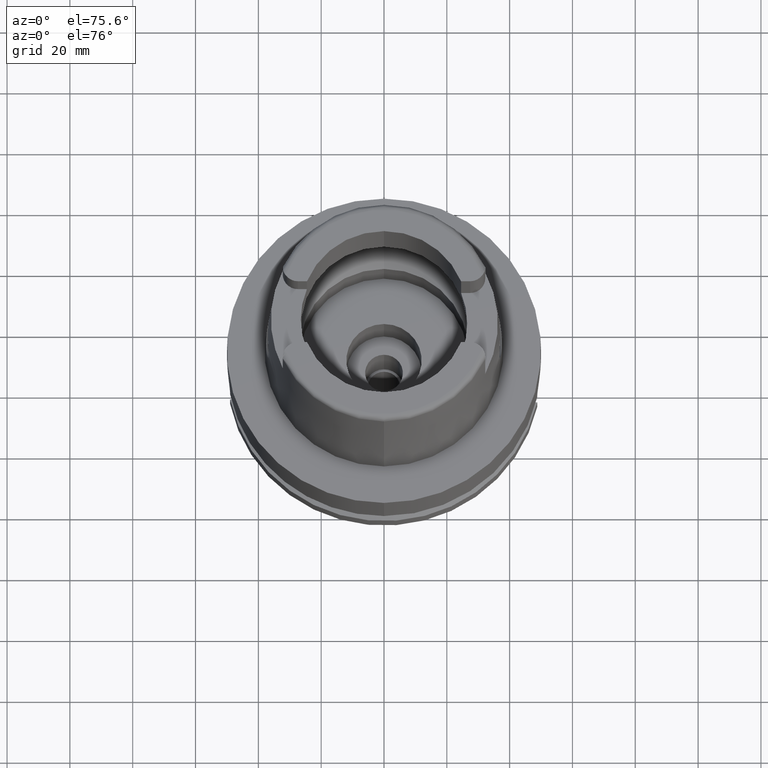
[diagram: clean part render]
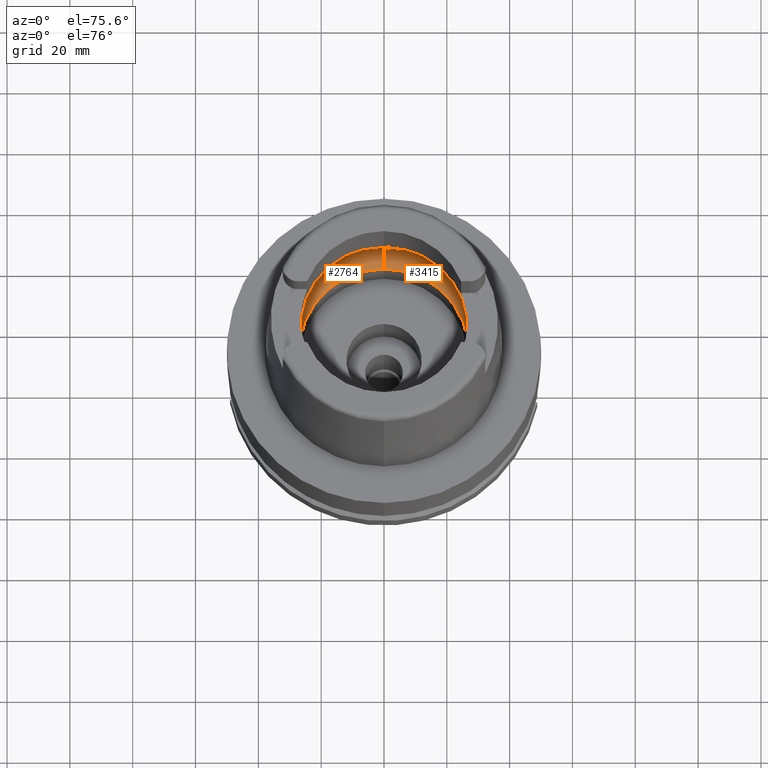
[diagram: same view with one multi-face feature highlighted, each face labeled with its STEP entity id]
A machine part, auxiliary view. The highlighted faces form ONE feature: a constant-radius fillet chain: 2 tangent blend faces with common blend radius 12 mm. The faces share edges in the B-rep.
Their STEP definitions:
[1] entity #3415 (Torus):
#8 = CIRCLE ( 'NONE', #812, 31.50000000000000000 ) ;
#39 = DIRECTION ( 'NONE',  ( 0.0000000000000000000, -0.6166666666667049990, -0.7872243785746061429 ) ) ;
#42 = AXIS2_PLACEMENT_3D ( 'NONE', #4394, #1813, #487 ) ;
#134 = CIRCLE ( 'NONE', #3307, 31.49999999999998934 ) ;
#153 = CIRCLE ( 'NONE', #3763, 26.89999999999999858 ) ;
#240 = ORIENTED_EDGE ( 'NONE', *, *, #1332, .F. ) ;
#327 = CARTESIAN_POINT ( 'NONE',  ( 31.40918884336000616, 2.390158196043999705, 9.496624327025999790 ) ) ;
#431 = CARTESIAN_POINT ( 'NONE',  ( 0.0000000000000000000, 0.0000000000000000000, 9.496624327025999790 ) ) ;
#448 = DIRECTION ( 'NONE',  ( 0.0000000000000000000, -1.000000000000000000, 0.0000000000000000000 ) ) ;
#474 = DIRECTION ( 'NONE',  ( 0.0000000000000000000, 0.0000000000000000000, 1.000000000000000000 ) ) ;
#487 = DIRECTION ( 'NONE',  ( 0.0000000000000000000, 1.000000000000000000, 0.0000000000000000000 ) ) ;
#523 = CARTESIAN_POINT ( 'NONE',  ( 31.40918884336000616, -2.390158196043999705, 9.496624327025999790 ) ) ;
#694 = CARTESIAN_POINT ( 'NONE',  ( 0.0000000000000000000, 19.50000000000000000, 9.496624327025999790 ) ) ;
#800 = CARTESIAN_POINT ( 'NONE',  ( 31.45843215351000310, 1.626125992769999806, 9.205189397203000112 ) ) ;
#812 = AXIS2_PLACEMENT_3D ( 'NONE', #431, #2612, #5432 ) ;
#1130 = VERTEX_POINT ( 'NONE', #1735 ) ;
#1237 = ORIENTED_EDGE ( 'NONE', *, *, #2374, .F. ) ;
#1319 = CARTESIAN_POINT ( 'NONE',  ( 0.0000000000000000000, 0.0000000000000000000, 0.04993178413033000362 ) ) ;
#1331 = CARTESIAN_POINT ( 'NONE',  ( 0.0000000000000000000, 31.50000000000000000, 9.496624327025999790 ) ) ;
#1332 = EDGE_CURVE ( 'NONE', #3089, #1660, #134, .T. ) ;
#1349 = ORIENTED_EDGE ( 'NONE', *, *, #2657, .F. ) ;
#1395 = VERTEX_POINT ( 'NONE', #3358 ) ;
#1660 = VERTEX_POINT ( 'NONE', #2300 ) ;
#1729 = B_SPLINE_CURVE_WITH_KNOTS ( 'NONE', 3,
 ( #327, #5590, #800, #2058, #2161, #2104 ),
 .UNSPECIFIED., .F., .F.,
 ( 4, 1, 1, 4 ),
 ( 0.0000000000000000000, 0.3333333333333000081, 0.6666666666667000474, 1.000000000000000000 ),
 .UNSPECIFIED. ) ;
#1735 = CARTESIAN_POINT ( 'NONE',  ( 31.40918884336000616, 2.390158196043999705, 9.496624327025999790 ) ) ;
#1750 = CIRCLE ( 'NONE', #2481, 11.99999999999999822 ) ;
#1793 = CARTESIAN_POINT ( 'NONE',  ( 31.45843229728999901, -1.626122314408000147, 9.205188491873000700 ) ) ;
#1801 = B_SPLINE_CURVE_WITH_KNOTS ( 'NONE', 3,
 ( #4001, #2186, #3073, #1793, #2680, #523 ),
 .UNSPECIFIED., .F., .F.,
 ( 4, 1, 1, 4 ),
 ( 0.0000000000000000000, 0.3333333333333000081, 0.6666666666667000474, 1.000000000000000000 ),
 .UNSPECIFIED. ) ;
#1813 = DIRECTION ( 'NONE',  ( 0.0000000000000000000, 0.0000000000000000000, 1.000000000000000000 ) ) ;
#1989 = ORIENTED_EDGE ( 'NONE', *, *, #2773, .F. ) ;
#2058 = CARTESIAN_POINT ( 'NONE',  ( 31.48416663622000300, 0.8216256622719000369, 9.037606172252001357 ) ) ;
#2104 = CARTESIAN_POINT ( 'NONE',  ( 31.48971910754000447, 0.0000000000000000000, 9.000000000000000000 ) ) ;
#2161 = CARTESIAN_POINT ( 'NONE',  ( 31.48971910754000447, 0.2740808193429000172, 9.000000000000000000 ) ) ;
#2181 = VERTEX_POINT ( 'NONE', #4269 ) ;
#2186 = CARTESIAN_POINT ( 'NONE',  ( 31.48971910754000447, -0.2740816369240999806, 9.000000000000000000 ) ) ;
#2209 = ORIENTED_EDGE ( 'NONE', *, *, #3029, .F. ) ;
#2300 = CARTESIAN_POINT ( 'NONE',  ( 0.0000000000000000000, -31.50000000000000000, 9.496624327025999790 ) ) ;
#2374 = EDGE_CURVE ( 'NONE', #1395, #5329, #153, .T. ) ;
#2426 = DIRECTION ( 'NONE',  ( 1.000000000000000000, 0.0000000000000000000, 0.0000000000000000000 ) ) ;
#2481 = AXIS2_PLACEMENT_3D ( 'NONE', #3913, #3067, #39 ) ;
#2612 = DIRECTION ( 'NONE',  ( 0.0000000000000000000, 0.0000000000000000000, -1.000000000000000000 ) ) ;
#2657 = EDGE_CURVE ( 'NONE', #1130, #2181, #1729, .T. ) ;
#2680 = CARTESIAN_POINT ( 'NONE',  ( 31.42817542026000410, -2.140654635826999996, 9.388263020288000860 ) ) ;
#2773 = EDGE_CURVE ( 'NONE', #2181, #3089, #1801, .T. ) ;
#2831 = DIRECTION ( 'NONE',  ( 0.9971171061384295209, -0.07587803796965221503, 0.0000000000000000000 ) ) ;
#3017 = AXIS2_PLACEMENT_3D ( 'NONE', #694, #2426, #5397 ) ;
#3029 = EDGE_CURVE ( 'NONE', #5329, #4641, #3743, .T. ) ;
#3067 = DIRECTION ( 'NONE',  ( -1.000000000000000000, 0.0000000000000000000, 0.0000000000000000000 ) ) ;
#3073 = CARTESIAN_POINT ( 'NONE',  ( 31.48416657243999950, -0.8216274657312000462, 9.037606582851999804 ) ) ;
#3089 = VERTEX_POINT ( 'NONE', #4728 ) ;
#3307 = AXIS2_PLACEMENT_3D ( 'NONE', #4605, #5453, #2831 ) ;
#3350 = EDGE_CURVE ( 'NONE', #1395, #1660, #1750, .T. ) ;
#3358 = CARTESIAN_POINT ( 'NONE',  ( 0.0000000000000000000, -26.89999999999999858, 0.04993178413033000362 ) ) ;
#3390 = ORIENTED_EDGE ( 'NONE', *, *, #3350, .T. ) ;
#3415 = ADVANCED_FACE ( 'NONE', ( #4362 ), #5373, .F. ) ;
#3529 = EDGE_LOOP ( 'NONE', ( #1349, #4062, #2209, #1237, #3390, #240, #1989 ) ) ;
#3743 = CIRCLE ( 'NONE', #3017, 11.99999999999999822 ) ;
#3763 = AXIS2_PLACEMENT_3D ( 'NONE', #1319, #474, #448 ) ;
#3913 = CARTESIAN_POINT ( 'NONE',  ( 0.0000000000000000000, -19.50000000000000000, 9.496624327025999790 ) ) ;
#4001 = CARTESIAN_POINT ( 'NONE',  ( 31.48971910754000447, 0.0000000000000000000, 9.000000000000000000 ) ) ;
#4062 = ORIENTED_EDGE ( 'NONE', *, *, #4370, .F. ) ;
#4269 = CARTESIAN_POINT ( 'NONE',  ( 31.48971910754000447, 0.0000000000000000000, 9.000000000000000000 ) ) ;
#4362 = FACE_OUTER_BOUND ( 'NONE', #3529, .T. ) ;
#4370 = EDGE_CURVE ( 'NONE', #4641, #1130, #8, .T. ) ;
#4394 = CARTESIAN_POINT ( 'NONE',  ( 0.0000000000000000000, 0.0000000000000000000, 9.496624327025999790 ) ) ;
#4433 = CARTESIAN_POINT ( 'NONE',  ( 0.0000000000000000000, 26.89999999999999858, 0.04993178413034000257 ) ) ;
#4605 = CARTESIAN_POINT ( 'NONE',  ( 0.0000000000000000000, 0.0000000000000000000, 9.496624327025999790 ) ) ;
#4641 = VERTEX_POINT ( 'NONE', #1331 ) ;
#4728 = CARTESIAN_POINT ( 'NONE',  ( 31.40918884336000616, -2.390158196043999705, 9.496624327025999790 ) ) ;
#5329 = VERTEX_POINT ( 'NONE', #4433 ) ;
#5373 = TOROIDAL_SURFACE ( 'NONE', #42, 19.50000000000000000, 12.00000000000000000 ) ;
#5397 = DIRECTION ( 'NONE',  ( 0.0000000000000000000, 0.6166666666667049990, -0.7872243785746061429 ) ) ;
#5432 = DIRECTION ( 'NONE',  ( 0.0000000000000000000, 1.000000000000000000, 0.0000000000000000000 ) ) ;
#5453 = DIRECTION ( 'NONE',  ( 0.0000000000000000000, 0.0000000000000000000, -1.000000000000000000 ) ) ;
#5590 = CARTESIAN_POINT ( 'NONE',  ( 31.42817530553000083, 2.140656143518000487, 9.388263675090000149 ) ) ;
[2] entity #2764 (Torus):
#39 = DIRECTION ( 'NONE',  ( 0.0000000000000000000, -0.6166666666667049990, -0.7872243785746061429 ) ) ;
#123 = CARTESIAN_POINT ( 'NONE',  ( -31.48971910754000447, 0.2740813517951999900, 9.000000000000000000 ) ) ;
#184 = CARTESIAN_POINT ( 'NONE',  ( -31.45843235400999660, -1.626121130666000170, 9.205188134635001518 ) ) ;
#208 = ORIENTED_EDGE ( 'NONE', *, *, #3029, .T. ) ;
#303 = CARTESIAN_POINT ( 'NONE',  ( 0.0000000000000000000, 0.0000000000000000000, 0.04993178413033000362 ) ) ;
#494 = DIRECTION ( 'NONE',  ( 0.0000000000000000000, 0.0000000000000000000, 1.000000000000000000 ) ) ;
#495 = CIRCLE ( 'NONE', #4931, 26.89999999999999858 ) ;
#506 = CIRCLE ( 'NONE', #2949, 31.50000000000001421 ) ;
#661 = CARTESIAN_POINT ( 'NONE',  ( -31.40918884336000616, -2.390158196043999705, 9.496624327025999790 ) ) ;
#687 = ORIENTED_EDGE ( 'NONE', *, *, #5167, .F. ) ;
#694 = CARTESIAN_POINT ( 'NONE',  ( 0.0000000000000000000, 19.50000000000000000, 9.496624327025999790 ) ) ;
#921 = ORIENTED_EDGE ( 'NONE', *, *, #3350, .F. ) ;
#950 = EDGE_CURVE ( 'NONE', #5329, #1395, #495, .T. ) ;
#970 = CARTESIAN_POINT ( 'NONE',  ( -31.40918884336000616, 2.390158196043999705, 9.496624327025999790 ) ) ;
#1085 = VERTEX_POINT ( 'NONE', #4708 ) ;
#1172 = CARTESIAN_POINT ( 'NONE',  ( -31.42817545703999826, -2.140654152532999621, 9.388262810390001434 ) ) ;
#1216 = ORIENTED_EDGE ( 'NONE', *, *, #4832, .F. ) ;
#1279 = CARTESIAN_POINT ( 'NONE',  ( -31.40918884336000616, -2.390158196043999705, 9.496624327025999790 ) ) ;
#1331 = CARTESIAN_POINT ( 'NONE',  ( 0.0000000000000000000, 31.50000000000000000, 9.496624327025999790 ) ) ;
#1395 = VERTEX_POINT ( 'NONE', #3358 ) ;
#1396 = CARTESIAN_POINT ( 'NONE',  ( -31.45843209623000547, 1.626127188330999784, 9.205189758010000389 ) ) ;
#1616 = CIRCLE ( 'NONE', #2706, 31.50000000000000000 ) ;
#1660 = VERTEX_POINT ( 'NONE', #2300 ) ;
#1750 = CIRCLE ( 'NONE', #2481, 11.99999999999999822 ) ;
#1771 = AXIS2_PLACEMENT_3D ( 'NONE', #3548, #494, #5222 ) ;
#1775 = EDGE_CURVE ( 'NONE', #5348, #1085, #5230, .T. ) ;
#1809 = DIRECTION ( 'NONE',  ( 0.0000000000000000000, 0.0000000000000000000, -1.000000000000000000 ) ) ;
#1985 = ORIENTED_EDGE ( 'NONE', *, *, #1775, .F. ) ;
#2053 = TOROIDAL_SURFACE ( 'NONE', #1771, 19.50000000000000000, 12.00000000000000000 ) ;
#2300 = CARTESIAN_POINT ( 'NONE',  ( 0.0000000000000000000, -31.50000000000000000, 9.496624327025999790 ) ) ;
#2360 = CARTESIAN_POINT ( 'NONE',  ( -31.48971910754000447, 0.0000000000000000000, 9.000000000000000000 ) ) ;
#2404 = DIRECTION ( 'NONE',  ( 0.0000000000000000000, 1.000000000000000000, 0.0000000000000000000 ) ) ;
#2426 = DIRECTION ( 'NONE',  ( 1.000000000000000000, 0.0000000000000000000, 0.0000000000000000000 ) ) ;
#2481 = AXIS2_PLACEMENT_3D ( 'NONE', #3913, #3067, #39 ) ;
#2609 = EDGE_CURVE ( 'NONE', #4713, #4641, #506, .T. ) ;
#2671 = ORIENTED_EDGE ( 'NONE', *, *, #2609, .F. ) ;
#2706 = AXIS2_PLACEMENT_3D ( 'NONE', #3173, #1809, #4874 ) ;
#2764 = ADVANCED_FACE ( 'NONE', ( #5339 ), #2053, .F. ) ;
#2935 = DIRECTION ( 'NONE',  ( -0.9971171061384286327, 0.07587803796966216541, 0.0000000000000000000 ) ) ;
#2949 = AXIS2_PLACEMENT_3D ( 'NONE', #5162, #4237, #2935 ) ;
#2983 = EDGE_LOOP ( 'NONE', ( #687, #921, #3664, #208, #2671, #1216, #1985 ) ) ;
#3017 = AXIS2_PLACEMENT_3D ( 'NONE', #694, #2426, #5397 ) ;
#3029 = EDGE_CURVE ( 'NONE', #5329, #4641, #3743, .T. ) ;
#3067 = DIRECTION ( 'NONE',  ( -1.000000000000000000, 0.0000000000000000000, 0.0000000000000000000 ) ) ;
#3173 = CARTESIAN_POINT ( 'NONE',  ( 0.0000000000000000000, 0.0000000000000000000, 9.496624327025999790 ) ) ;
#3183 = CARTESIAN_POINT ( 'NONE',  ( -31.48416661469000033, 0.8216269012393999649, 9.037606318336999678 ) ) ;
#3245 = CARTESIAN_POINT ( 'NONE',  ( -31.42817526838999953, 2.140656631636999929, 9.388263887083001080 ) ) ;
#3339 = DIRECTION ( 'NONE',  ( 0.0000000000000000000, 0.0000000000000000000, 1.000000000000000000 ) ) ;
#3350 = EDGE_CURVE ( 'NONE', #1395, #1660, #1750, .T. ) ;
#3358 = CARTESIAN_POINT ( 'NONE',  ( 0.0000000000000000000, -26.89999999999999858, 0.04993178413033000362 ) ) ;
#3548 = CARTESIAN_POINT ( 'NONE',  ( 0.0000000000000000000, 0.0000000000000000000, 9.496624327025999790 ) ) ;
#3664 = ORIENTED_EDGE ( 'NONE', *, *, #950, .F. ) ;
#3722 = CARTESIAN_POINT ( 'NONE',  ( -31.48416659375000037, -0.8216262390445000507, 9.037606438216000626 ) ) ;
#3743 = CIRCLE ( 'NONE', #3017, 11.99999999999999822 ) ;
#3913 = CARTESIAN_POINT ( 'NONE',  ( 0.0000000000000000000, -19.50000000000000000, 9.496624327025999790 ) ) ;
#4237 = DIRECTION ( 'NONE',  ( 0.0000000000000000000, 0.0000000000000000000, -1.000000000000000000 ) ) ;
#4433 = CARTESIAN_POINT ( 'NONE',  ( 0.0000000000000000000, 26.89999999999999858, 0.04993178413034000257 ) ) ;
#4572 = CARTESIAN_POINT ( 'NONE',  ( -31.48971910754000447, -0.2740811097498000448, 9.000000000000000000 ) ) ;
#4641 = VERTEX_POINT ( 'NONE', #1331 ) ;
#4708 = CARTESIAN_POINT ( 'NONE',  ( -31.48971910754000447, 0.0000000000000000000, 9.000000000000000000 ) ) ;
#4713 = VERTEX_POINT ( 'NONE', #5358 ) ;
#4832 = EDGE_CURVE ( 'NONE', #1085, #4713, #5227, .T. ) ;
#4874 = DIRECTION ( 'NONE',  ( 0.0000000000000000000, -1.000000000000000000, 0.0000000000000000000 ) ) ;
#4885 = CARTESIAN_POINT ( 'NONE',  ( -31.48971910754000447, 0.0000000000000000000, 9.000000000000000000 ) ) ;
#4931 = AXIS2_PLACEMENT_3D ( 'NONE', #303, #3339, #2404 ) ;
#5162 = CARTESIAN_POINT ( 'NONE',  ( 0.0000000000000000000, 0.0000000000000000000, 9.496624327025999790 ) ) ;
#5167 = EDGE_CURVE ( 'NONE', #1660, #5348, #1616, .T. ) ;
#5222 = DIRECTION ( 'NONE',  ( 0.0000000000000000000, 1.000000000000000000, 0.0000000000000000000 ) ) ;
#5227 = B_SPLINE_CURVE_WITH_KNOTS ( 'NONE', 3,
 ( #4885, #123, #3183, #1396, #3245, #970 ),
 .UNSPECIFIED., .F., .F.,
 ( 4, 1, 1, 4 ),
 ( 0.0000000000000000000, 0.3333333333333000081, 0.6666666666667000474, 1.000000000000000000 ),
 .UNSPECIFIED. ) ;
#5230 = B_SPLINE_CURVE_WITH_KNOTS ( 'NONE', 3,
 ( #661, #1172, #184, #3722, #4572, #2360 ),
 .UNSPECIFIED., .F., .F.,
 ( 4, 1, 1, 4 ),
 ( 0.0000000000000000000, 0.3333333333333000081, 0.6666666666667000474, 1.000000000000000000 ),
 .UNSPECIFIED. ) ;
#5329 = VERTEX_POINT ( 'NONE', #4433 ) ;
#5339 = FACE_OUTER_BOUND ( 'NONE', #2983, .T. ) ;
#5348 = VERTEX_POINT ( 'NONE', #1279 ) ;
#5358 = CARTESIAN_POINT ( 'NONE',  ( -31.40918884336000616, 2.390158196043999705, 9.496624327025999790 ) ) ;
#5397 = DIRECTION ( 'NONE',  ( 0.0000000000000000000, 0.6166666666667049990, -0.7872243785746061429 ) ) ;